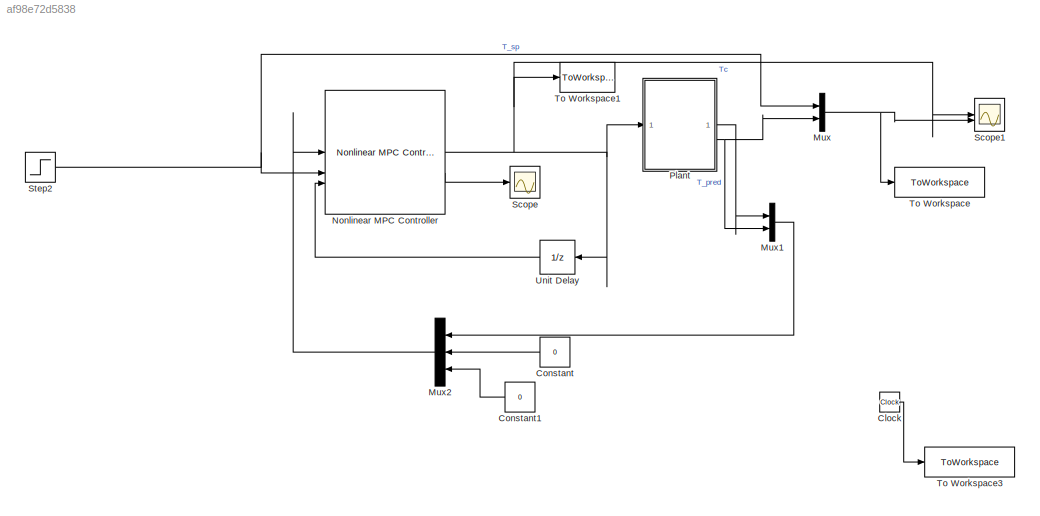
MODEL slx_af98e72d5838
KIND model
CONFIG AbsTol = auto
CONFIG EnableMultiTasking = off
CONFIG FixedStep = auto
CONFIG MaxStep = auto
CONFIG MinStep = auto
CONFIG RelTol = 1e-3
CONFIG SampleTimeConstraint = Unconstrained
CONFIG SolverName = VariableStepAuto
CONFIG StartTime = 0.0
CONFIG StopTime = 30
BLOCK [Clock] Clock
BLOCK [Constant] Constant
  Value = 0
BLOCK [Constant] Constant1
  Value = 0
BLOCK [Mux] Mux
  DisplayOption = bar
  Inputs = 2
BLOCK [Mux] Mux1
  DisplayOption = bar
  Inputs = 2
BLOCK [Mux] Mux2
  DisplayOption = bar
  Inputs = 3
BLOCK [Reference] Nonlinear MPC Controller  REF=mpclib/Nonlinear MPC Controller  (lib defined in mdl_ae329e0e0455)
  SourceBlock = mpclib/Nonlinear MPC Controller
  SourceType = NonlinearMPC
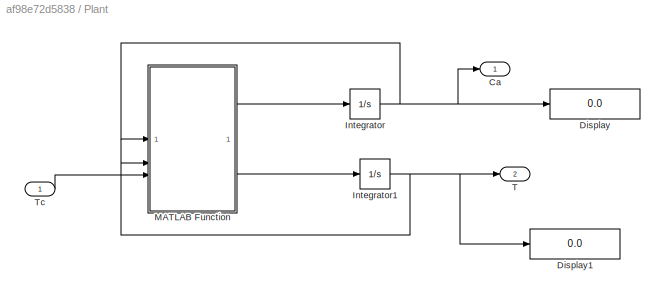
BLOCK [SubSystem] Plant
BLOCK [Outport] Plant/Ca
BLOCK [Display] Plant/Display
  Decimation = 1
BLOCK [Display] Plant/Display1
  Decimation = 1
BLOCK [Integrator] Plant/Integrator
BLOCK [Integrator] Plant/Integrator1
  InitialCondition = 300
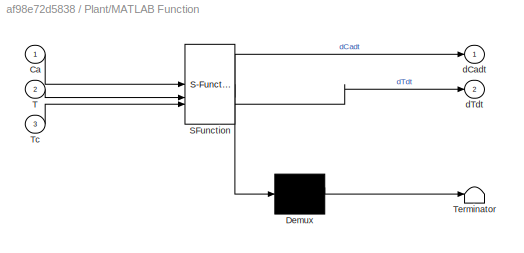
BLOCK [SubSystem] Plant/MATLAB Function
  ErrorFcn = Stateflow.Translate.translate
  PermitHierarchicalResolution = ExplicitOnly
  SFBlockType = MATLAB Function
  TreatAsAtomicUnit = on
BLOCK [Demux] Plant/MATLAB Function/ Demux 
  Outputs = 1
BLOCK [S-Function] Plant/MATLAB Function/ SFunction 
  EnableBusSupport = on
  FunctionName = sf_sfun
  PortCounts = [3 3]
  SFcnIsStateOwnerBlock = off
  SFunctionDeploymentMode = off
  Tag = Stateflow S-Function 2
BLOCK [Terminator] Plant/MATLAB Function/ Terminator 
BLOCK [Inport] Plant/MATLAB Function/Ca
BLOCK [Inport] Plant/MATLAB Function/T
  Port = 2
BLOCK [Inport] Plant/MATLAB Function/Tc
  Port = 3
BLOCK [Outport] Plant/MATLAB Function/dCadt
BLOCK [Outport] Plant/MATLAB Function/dTdt
  Port = 2
BLOCK [Outport] Plant/T
  Port = 2
BLOCK [Inport] Plant/Tc
BLOCK [Scope] Scope
  Floating = off
  NumInputPorts = 1
  ScopeSpecificationString = Simulink.scopes.TimeScopeBlockCfg('CurrentConfiguration', extmgr.ConfigurationSet(extmgr.Configuration('Core','General UI',true),extmgr.Configuration('Core','Source UI',true),extmgr.Configuration('Sources','WiredSimulink',true),extmgr.Configuration('Visuals','Time Domain',true,'SerializedDisplays',{struct('MinYLimReal','-2.5','MaxYLimReal','2.5','YLabelReal','','MinYLimMag','0.00000','MaxYLimMag',...<+1357ch>
BLOCK [Scope] Scope1
  Floating = off
  NumInputPorts = 2
  ScopeSpecificationString = Simulink.scopes.TimeScopeBlockCfg('CurrentConfiguration', extmgr.ConfigurationSet(extmgr.Configuration('Core','General UI',true,'FigureColor',[1 1 1]),extmgr.Configuration('Core','Source UI',true),extmgr.Configuration('Sources','WiredSimulink',true,'DataLoggingVariableName','ScopeData1'),extmgr.Configuration('Visuals','Time Domain',true,'SerializedDisplays',{struct('MinYLimReal','273.89243','MaxYL...<+2333ch>
BLOCK [Step] Step2
  After = 305
  Before = 324.5
  SampleTime = Ts
  Time = 10
BLOCK [ToWorkspace] To Workspace
  FixptAsFi = on
  MaxDataPoints = inf
  SampleTime = Ts
  SaveFormat = Timeseries
  VariableName = T_nom
BLOCK [ToWorkspace] To Workspace1
  FixptAsFi = on
  MaxDataPoints = inf
  SampleTime = -1
  SaveFormat = Timeseries
  VariableName = Tc_nom
BLOCK [ToWorkspace] To Workspace3
  FixptAsFi = on
  MaxDataPoints = inf
  SampleTime = Ts
  SaveFormat = Timeseries
  VariableName = t_save
BLOCK [UnitDelay] Unit Delay
  HasFrameUpgradeWarning = on
  InitialCondition = u0
  SampleTime = Ts
LINE Clock:1 -> To Workspace3:1
LINE Constant1:1 -> Mux2:3
LINE Constant:1 -> Mux2:2
LINE Mux1:1 -> Mux2:1
LINE Mux2:1 -> Nonlinear MPC Controller:1
NET Mux:1 -> Scope1:2, To Workspace:1
NET Nonlinear MPC Controller:1 -> Plant:1, Scope1:1, To Workspace1:1, Unit Delay:1
LINE Nonlinear MPC Controller:2 -> Scope:1
NET Plant/Integrator1:1 -> Plant/Display1:1, Plant/MATLAB Function:2, Plant/T:1
NET Plant/Integrator:1 -> Plant/Ca:1, Plant/Display:1, Plant/MATLAB Function:1
LINE Plant/MATLAB Function:1 -> Plant/Integrator:1
LINE Plant/MATLAB Function:2 -> Plant/Integrator1:1
LINE Plant/Tc:1 -> Plant/MATLAB Function:3
LINE Plant:1 -> Mux1:1
NET Plant:2 -> Mux1:2, Mux:2
NET Step2:1 -> Mux:1, Nonlinear MPC Controller:2
LINE Unit Delay:1 -> Nonlinear MPC Controller:3
note: NET lines group one-source signal fan-out (src -> all destinations, sorted); 1:1 wires keep LINE
CHART Plant/MATLAB Function states=1 transitions=1
  STATE_LABEL 'eML_blk_kernel()'
  STATE_LABEL 'SCRIPT:\nfunction [dCadt,dTdt] = fcn(Ca,T,Tc)\n\nvalues = {100,5e4,350,100,1000,0.239,8750,7.2e10,5e4,1};\n[F,delta_H,Tf,V,rho,Cp,E_R,k0,U_A,Caf] = values{:};\n\n% Rate constant (Arrhenius equation)\n        k = k0 * exp(-E_R / T);\n        \n        % Mass balance for Ca\n        dCadt = F/V * (Caf - Ca) - k * Ca;\n        \n        % Energy balance for T\n        dTdt = F/V * (Tf - T) + (delta_H / (rho * Cp)...<+54ch>'
CHART  states=0 transitions=0
